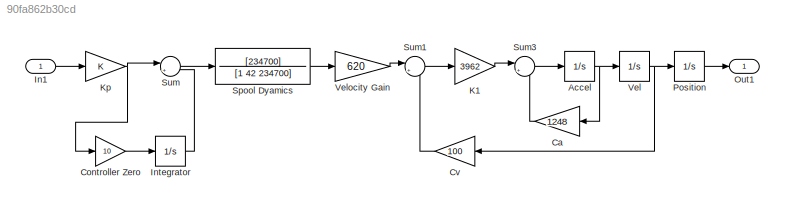
MODEL slx_90fa862b30cd
KIND model
BLOCK [Integrator] Accel
  Ports = [1, 1]
BLOCK [Gain] Ca
  Gain = 1248
  OutDataTypeStr = Inherit: Inherit via internal rule
  ParamDataTypeStr = Inherit: Inherit via internal rule
  SaturateOnIntegerOverflow = off
BLOCK [Gain] Controller Zero
  Gain = 10
  OutDataTypeStr = Inherit: Inherit via internal rule
  ParamDataTypeStr = Inherit: Inherit via internal rule
  SaturateOnIntegerOverflow = off
BLOCK [Gain] Cv
  Gain = 100
  OutDataTypeStr = Inherit: Inherit via internal rule
  ParamDataTypeStr = Inherit: Inherit via internal rule
  SaturateOnIntegerOverflow = off
BLOCK [Inport] In1
  IconDisplay = Port number
BLOCK [Integrator] Integrator
  Ports = [1, 1]
BLOCK [Gain] K1
  Gain = 3962
  OutDataTypeStr = Inherit: Inherit via internal rule
  ParamDataTypeStr = Inherit: Inherit via internal rule
  SaturateOnIntegerOverflow = off
BLOCK [Gain] Kp
  OutDataTypeStr = Inherit: Inherit via internal rule
  ParamDataTypeStr = Inherit: Inherit via internal rule
  SaturateOnIntegerOverflow = off
BLOCK [Outport] Out1
  IconDisplay = Port number
BLOCK [Integrator] Position
  Ports = [1, 1]
BLOCK [TransferFcn] Spool Dyamics
  Denominator = [1 42 234700]
  Numerator = [234700]
BLOCK [Sum] Sum
  IconShape = round
  InputSameDT = off
  Inputs = |++
  OutDataTypeStr = Inherit: Inherit via internal rule
  Ports = [2, 1]
  SaturateOnIntegerOverflow = off
BLOCK [Sum] Sum1
  IconShape = round
  InputSameDT = off
  Inputs = |+-
  OutDataTypeStr = Inherit: Inherit via internal rule
  Ports = [2, 1]
  SaturateOnIntegerOverflow = off
BLOCK [Sum] Sum3
  IconShape = round
  InputSameDT = off
  Inputs = |+-
  OutDataTypeStr = Inherit: Inherit via internal rule
  Ports = [2, 1]
  SaturateOnIntegerOverflow = off
BLOCK [Integrator] Vel
  Ports = [1, 1]
BLOCK [Gain] Velocity Gain
  Gain = 620
  OutDataTypeStr = Inherit: Inherit via internal rule
  ParamDataTypeStr = Inherit: Inherit via internal rule
  SaturateOnIntegerOverflow = off
NET Accel:1 -> Ca:1, Vel:1
LINE Ca:1 -> Sum3:2
LINE Controller Zero:1 -> Integrator:1
LINE Cv:1 -> Sum1:2
LINE In1:1 -> Kp:1
LINE Integrator:1 -> Sum:2
LINE K1:1 -> Sum3:1
NET Kp:1 -> Controller Zero:1, Sum:1
LINE Position:1 -> Out1:1
LINE Spool Dyamics:1 -> Velocity Gain:1
LINE Sum1:1 -> K1:1
LINE Sum3:1 -> Accel:1
LINE Sum:1 -> Spool Dyamics:1
NET Vel:1 -> Cv:1, Position:1
LINE Velocity Gain:1 -> Sum1:1
note: NET lines group one-source signal fan-out (src -> all destinations, sorted); 1:1 wires keep LINE
